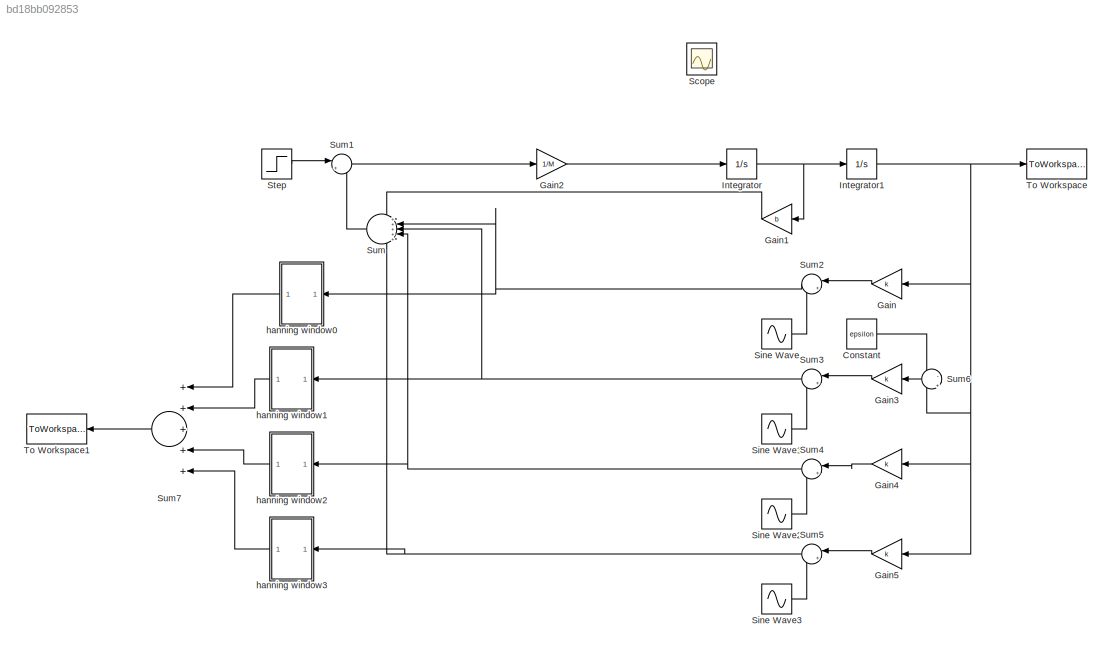
MODEL slx_bd18bb092853
KIND model
CONFIG AbsTol = auto
CONFIG EnableMultiTasking = off
CONFIG FixedStep = auto
CONFIG MaxStep = auto
CONFIG MinStep = auto
CONFIG RelTol = 1e-3
CONFIG SampleTimeConstraint = Unconstrained
CONFIG Solver = VariableStepAuto
CONFIG SolverName = VariableStepAuto
CONFIG StartTime = 0.0
CONFIG StopTime = 100
BLOCK [Constant] Constant
  Value = epsilon
BLOCK [Gain] Gain
  Gain = k
  OutDataTypeStr = Inherit: Inherit via internal rule
  ParamDataTypeStr = Inherit: Inherit via internal rule
  SaturateOnIntegerOverflow = off
BLOCK [Gain] Gain1
  Gain = b
  OutDataTypeStr = Inherit: Inherit via internal rule
  ParamDataTypeStr = Inherit: Inherit via internal rule
  SaturateOnIntegerOverflow = off
BLOCK [Gain] Gain2
  Gain = 1/M
  OutDataTypeStr = Inherit: Inherit via internal rule
  ParamDataTypeStr = Inherit: Inherit via internal rule
  SaturateOnIntegerOverflow = off
BLOCK [Gain] Gain3
  Gain = k
  OutDataTypeStr = Inherit: Inherit via internal rule
  ParamDataTypeStr = Inherit: Inherit via internal rule
  SaturateOnIntegerOverflow = off
BLOCK [Gain] Gain4
  Gain = k
  OutDataTypeStr = Inherit: Inherit via internal rule
  ParamDataTypeStr = Inherit: Inherit via internal rule
  SaturateOnIntegerOverflow = off
BLOCK [Gain] Gain5
  Gain = k
  OutDataTypeStr = Inherit: Inherit via internal rule
  ParamDataTypeStr = Inherit: Inherit via internal rule
  SaturateOnIntegerOverflow = off
BLOCK [Integrator] Integrator
  Ports = [1, 1]
BLOCK [Integrator] Integrator1
  Ports = [1, 1]
BLOCK [Scope] Scope
  Floating = off
  IOType = viewer
  NumInputPorts = 1
  Ports = []
  ScopeSpecificationString = Simulink.scopes.TimeScopeBlockCfg('CurrentConfiguration', extmgr.ConfigurationSet(extmgr.Configuration('Core','General UI',true),extmgr.Configuration('Core','Source UI',true),extmgr.Configuration('Sources','WiredSimulink',true),extmgr.Configuration('Visuals','Time Domain',true,'SerializedDisplays',{struct('MinYLimReal','-0.01141','MaxYLimReal','0.03544','YLabelReal','','MinYLimMag','0.00000','MaxY...<+1360ch>
BLOCK [Sin] Sine Wave
  Amplitude = A
  Frequency = pi*2*f_k
  Ports = [0, 1]
  SampleTime = 0.001
BLOCK [Sin] Sine Wave1
  Amplitude = A
  Frequency = pi*2*f_k
  Ports = [0, 1]
  SampleTime = 0.001
BLOCK [Sin] Sine Wave2
  Amplitude = A
  Frequency = pi*2*f_k
  Ports = [0, 1]
  SampleTime = 0.001
BLOCK [Sin] Sine Wave3
  Amplitude = A
  Frequency = pi*2*f_k
  Ports = [0, 1]
  SampleTime = 0.001
BLOCK [Step] Step
  After = 0.01
  SampleTime = 0.001
BLOCK [Sum] Sum
  IconShape = round
  InputSameDT = off
  Inputs = +++++
  OutDataTypeStr = Inherit: Inherit via internal rule
  Ports = [5, 1]
  SaturateOnIntegerOverflow = off
BLOCK [Sum] Sum1
  IconShape = round
  InputSameDT = off
  Inputs = |+-
  OutDataTypeStr = Inherit: Inherit via internal rule
  Ports = [2, 1]
  SaturateOnIntegerOverflow = off
BLOCK [Sum] Sum2
  IconShape = round
  InputSameDT = off
  Inputs = |++
  OutDataTypeStr = Inherit: Inherit via internal rule
  Ports = [2, 1]
  SaturateOnIntegerOverflow = off
BLOCK [Sum] Sum3
  IconShape = round
  InputSameDT = off
  Inputs = |++
  OutDataTypeStr = Inherit: Inherit via internal rule
  Ports = [2, 1]
  SaturateOnIntegerOverflow = off
BLOCK [Sum] Sum4
  IconShape = round
  InputSameDT = off
  Inputs = |++
  OutDataTypeStr = Inherit: Inherit via internal rule
  Ports = [2, 1]
  SaturateOnIntegerOverflow = off
BLOCK [Sum] Sum5
  IconShape = round
  InputSameDT = off
  Inputs = |++
  OutDataTypeStr = Inherit: Inherit via internal rule
  Ports = [2, 1]
  SaturateOnIntegerOverflow = off
BLOCK [Sum] Sum6
  IconShape = round
  InputSameDT = off
  Inputs = -||+
  OutDataTypeStr = Inherit: Inherit via internal rule
  Ports = [2, 1]
  SaturateOnIntegerOverflow = off
BLOCK [Sum] Sum7
  InputSameDT = off
  Inputs = +++++
  OutDataTypeStr = Inherit: Inherit via internal rule
  Ports = [5, 1]
  SaturateOnIntegerOverflow = off
BLOCK [ToWorkspace] To Workspace
  FixptAsFi = on
  MaxDataPoints = inf
  Ports = [1]
  SampleTime = -1
  SaveFormat = Timeseries
  VariableName = x_out
BLOCK [ToWorkspace] To Workspace1
  FixptAsFi = on
  MaxDataPoints = inf
  Ports = [1]
  SampleTime = -1
  SaveFormat = Timeseries
  VariableName = Sig
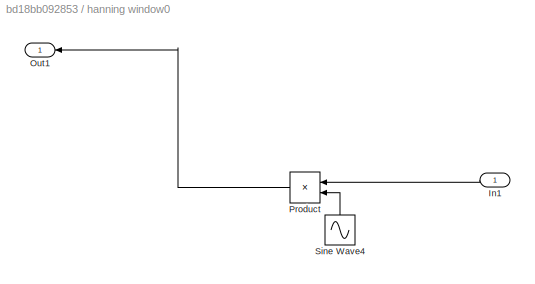
BLOCK [SubSystem] hanning window0
  Ports = [1, 1]
  RequestExecContextInheritance = off
BLOCK [Inport] hanning window0/In1
  IconDisplay = Port number
BLOCK [Outport] hanning window0/Out1
  IconDisplay = Port number
BLOCK [Product] hanning window0/Product
  InputSameDT = off
  OutDataTypeStr = Inherit: Inherit via internal rule
  Ports = [2, 1]
  RndMeth = Floor
  SaturateOnIntegerOverflow = off
BLOCK [Sin] hanning window0/Sine Wave4
  Amplitude = 0.5
  Bias = 0.5
  Frequency = f_k*2*pi/N
  Phase = pi*2/4*0
  Ports = [0, 1]
  SampleTime = 0
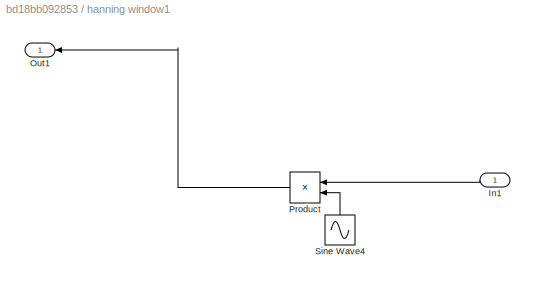
BLOCK [SubSystem] hanning window1
  Ports = [1, 1]
  RequestExecContextInheritance = off
BLOCK [Inport] hanning window1/In1
  IconDisplay = Port number
BLOCK [Outport] hanning window1/Out1
  IconDisplay = Port number
BLOCK [Product] hanning window1/Product
  InputSameDT = off
  OutDataTypeStr = Inherit: Inherit via internal rule
  Ports = [2, 1]
  RndMeth = Floor
  SaturateOnIntegerOverflow = off
BLOCK [Sin] hanning window1/Sine Wave4
  Amplitude = 0.5
  Bias = 0.5
  Frequency = f_k*2*pi/N
  Phase = pi*2/4*1
  Ports = [0, 1]
  SampleTime = 0
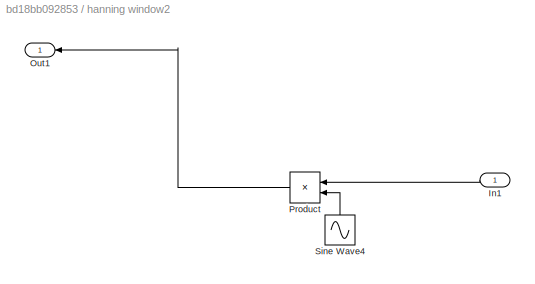
BLOCK [SubSystem] hanning window2
  Ports = [1, 1]
  RequestExecContextInheritance = off
BLOCK [Inport] hanning window2/In1
  IconDisplay = Port number
BLOCK [Outport] hanning window2/Out1
  IconDisplay = Port number
BLOCK [Product] hanning window2/Product
  InputSameDT = off
  OutDataTypeStr = Inherit: Inherit via internal rule
  Ports = [2, 1]
  RndMeth = Floor
  SaturateOnIntegerOverflow = off
BLOCK [Sin] hanning window2/Sine Wave4
  Amplitude = 0.5
  Bias = 0.5
  Frequency = f_k*2*pi/N
  Phase = pi*2/4*2
  Ports = [0, 1]
  SampleTime = 0
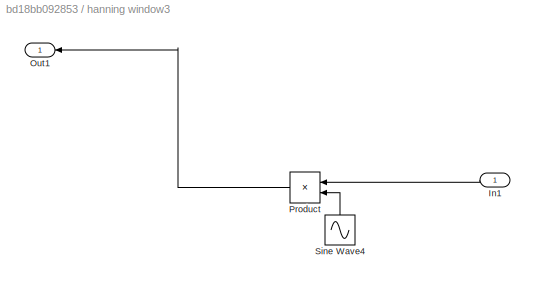
BLOCK [SubSystem] hanning window3
  Ports = [1, 1]
  RequestExecContextInheritance = off
BLOCK [Inport] hanning window3/In1
  IconDisplay = Port number
BLOCK [Outport] hanning window3/Out1
  IconDisplay = Port number
BLOCK [Product] hanning window3/Product
  InputSameDT = off
  OutDataTypeStr = Inherit: Inherit via internal rule
  Ports = [2, 1]
  RndMeth = Floor
  SaturateOnIntegerOverflow = off
BLOCK [Sin] hanning window3/Sine Wave4
  Amplitude = 0.5
  Bias = 0.5
  Frequency = f_k*2*pi/N
  Phase = pi*2/4*3
  Ports = [0, 1]
  SampleTime = 0
LINE Constant:1 -> Sum6:1
LINE Gain1:1 -> Sum:1
LINE Gain2:1 -> Integrator:1
LINE Gain3:1 -> Sum3:1
LINE Gain4:1 -> Sum4:1
LINE Gain5:1 -> Sum5:1
LINE Gain:1 -> Sum2:1
NET Integrator1:1 -> Gain4:1, Gain5:1, Gain:1, Sum6:2, To Workspace:1
NET Integrator:1 -> Gain1:1, Integrator1:1
LINE Sine Wave1:1 -> Sum3:2
LINE Sine Wave2:1 -> Sum4:2
LINE Sine Wave3:1 -> Sum5:2
LINE Sine Wave:1 -> Sum2:2
LINE Step:1 -> Sum1:1
LINE Sum1:1 -> Gain2:1
NET Sum2:1 -> Sum:2, hanning window0:1
NET Sum3:1 -> Sum:3, hanning window1:1
NET Sum4:1 -> Sum:4, hanning window2:1
NET Sum5:1 -> Sum:5, hanning window3:1
LINE Sum6:1 -> Gain3:1
LINE Sum7:1 -> To Workspace1:1
LINE Sum:1 -> Sum1:2
LINE hanning window0/In1:1 -> hanning window0/Product:1
LINE hanning window0/Product:1 -> hanning window0/Out1:1
LINE hanning window0/Sine Wave4:1 -> hanning window0/Product:2
LINE hanning window0:1 -> Sum7:1
LINE hanning window1/In1:1 -> hanning window1/Product:1
LINE hanning window1/Product:1 -> hanning window1/Out1:1
LINE hanning window1/Sine Wave4:1 -> hanning window1/Product:2
LINE hanning window1:1 -> Sum7:2
LINE hanning window2/In1:1 -> hanning window2/Product:1
LINE hanning window2/Product:1 -> hanning window2/Out1:1
LINE hanning window2/Sine Wave4:1 -> hanning window2/Product:2
LINE hanning window2:1 -> Sum7:4
LINE hanning window3/In1:1 -> hanning window3/Product:1
LINE hanning window3/Product:1 -> hanning window3/Out1:1
LINE hanning window3/Sine Wave4:1 -> hanning window3/Product:2
LINE hanning window3:1 -> Sum7:5
note: NET lines group one-source signal fan-out (src -> all destinations, sorted); 1:1 wires keep LINE
